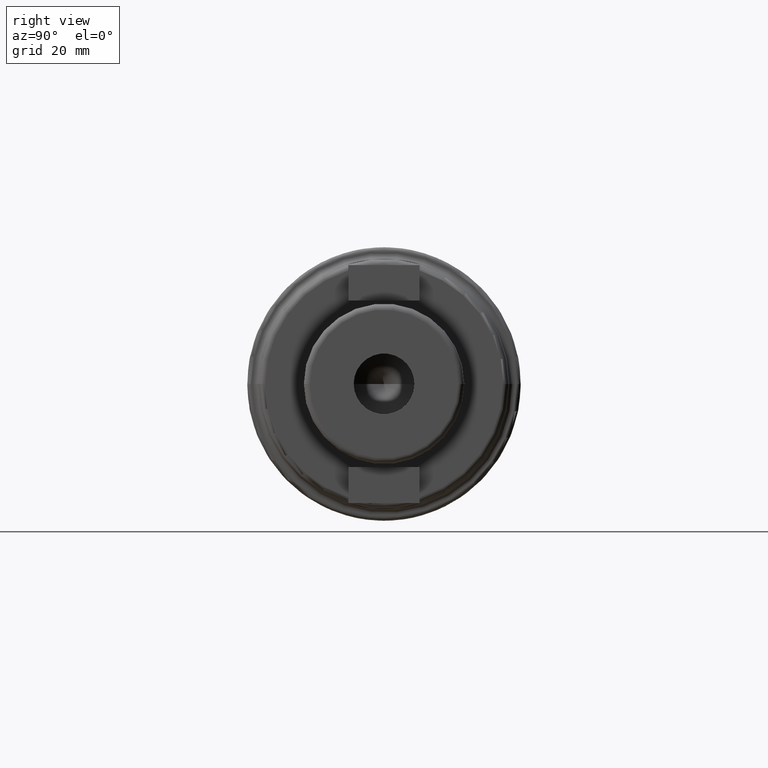
[diagram: clean part render]
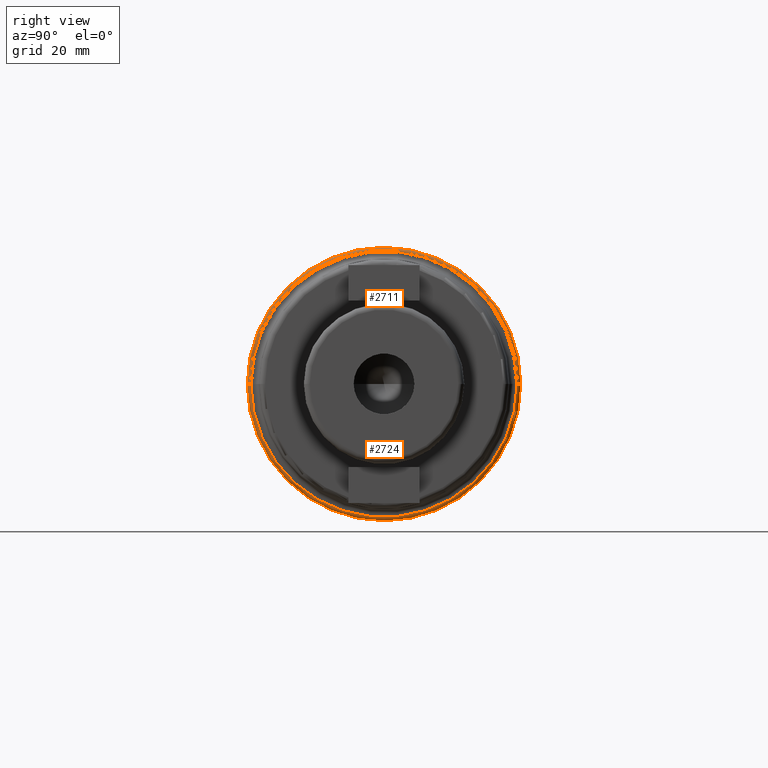
[diagram: same view with one multi-face feature highlighted, each face labeled with its STEP entity id]
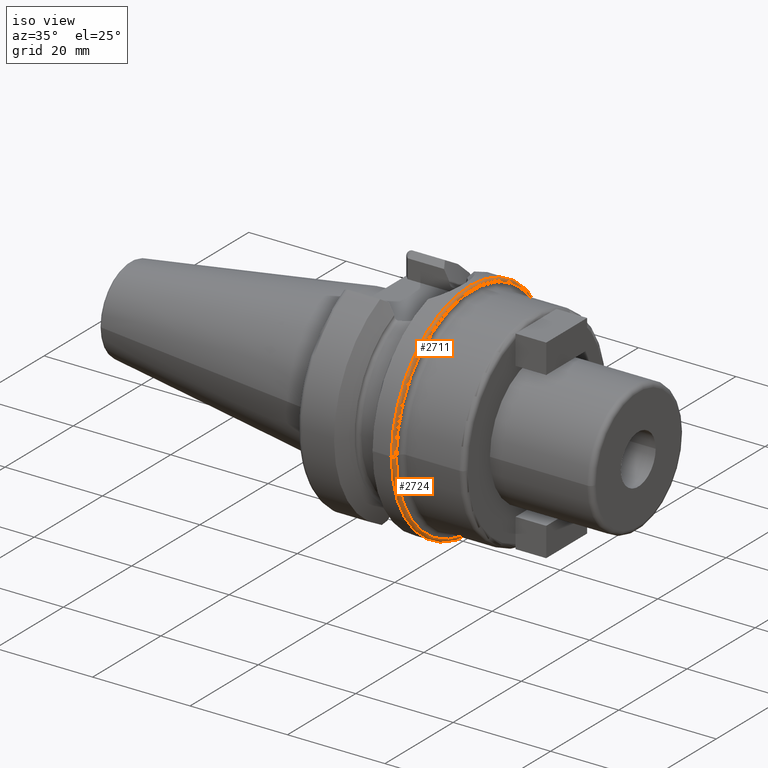
[diagram: same view with one multi-face feature highlighted, each face labeled with its STEP entity id]
A machine part, right view. The highlighted faces form ONE feature: a constant-radius fillet chain: 2 tangent blend faces with common blend radius 0.6 mm. The faces share edges in the B-rep.
A second angle (iso view) of the same feature is appended — it is thin or edge-on in the first view.
Their STEP definitions:
[1] entity #2711 (Torus):
#778=CARTESIAN_POINT('',(2.14E1,0.E0,0.E0));
#779=DIRECTION('',(1.E0,0.E0,0.E0));
#780=DIRECTION('',(0.E0,1.E0,0.E0));
#781=AXIS2_PLACEMENT_3D('',#778,#779,#780);
#802=CARTESIAN_POINT('',(2.2E1,0.E0,0.E0));
#803=DIRECTION('',(1.E0,0.E0,0.E0));
#804=DIRECTION('',(0.E0,1.E0,0.E0));
#805=AXIS2_PLACEMENT_3D('',#802,#803,#804);
#807=CARTESIAN_POINT('',(2.14E1,2.239E1,0.E0));
#808=DIRECTION('',(0.E0,0.E0,1.E0));
#809=DIRECTION('',(1.E0,0.E0,0.E0));
#810=AXIS2_PLACEMENT_3D('',#807,#808,#809);
#812=CARTESIAN_POINT('',(2.14E1,-2.239E1,0.E0));
#813=DIRECTION('',(0.E0,0.E0,-1.E0));
#814=DIRECTION('',(1.E0,0.E0,0.E0));
#815=AXIS2_PLACEMENT_3D('',#812,#813,#814);
#1408=CARTESIAN_POINT('',(2.14E1,2.299E1,0.E0));
#1409=VERTEX_POINT('',#1408);
#1410=CARTESIAN_POINT('',(2.14E1,-2.299E1,0.E0));
#1411=VERTEX_POINT('',#1410);
#1478=CARTESIAN_POINT('',(2.2E1,2.239E1,0.E0));
#1479=VERTEX_POINT('',#1478);
#1480=CARTESIAN_POINT('',(2.2E1,-2.239E1,0.E0));
#1481=VERTEX_POINT('',#1480);
#2697=CARTESIAN_POINT('',(2.14E1,0.E0,0.E0));
#2698=DIRECTION('',(1.E0,0.E0,0.E0));
#2699=DIRECTION('',(0.E0,-1.E0,0.E0));
#2700=AXIS2_PLACEMENT_3D('',#2697,#2698,#2699);
#2701=TOROIDAL_SURFACE('',#2700,2.239E1,6.E-1);
#2703=ORIENTED_EDGE('',*,*,#2702,.F.);
#2705=ORIENTED_EDGE('',*,*,#2704,.T.);
#2707=ORIENTED_EDGE('',*,*,#2706,.T.);
#2708=ORIENTED_EDGE('',*,*,#2688,.F.);
#2709=EDGE_LOOP('',(#2703,#2705,#2707,#2708));
#2710=FACE_OUTER_BOUND('',#2709,.F.);
#2711=ADVANCED_FACE('',(#2710),#2701,.T.);
#782=CIRCLE('',#781,2.299E1);
#806=CIRCLE('',#805,2.239E1);
#811=CIRCLE('',#810,6.E-1);
#816=CIRCLE('',#815,6.E-1);
#2688=EDGE_CURVE('',#1409,#1411,#782,.T.);
#2702=EDGE_CURVE('',#1479,#1409,#811,.T.);
#2704=EDGE_CURVE('',#1479,#1481,#806,.T.);
#2706=EDGE_CURVE('',#1481,#1411,#816,.T.);
[2] entity #2724 (Torus):
#235=CARTESIAN_POINT('',(2.14E1,0.E0,0.E0));
#236=DIRECTION('',(-1.E0,0.E0,0.E0));
#237=DIRECTION('',(0.E0,1.E0,0.E0));
#238=AXIS2_PLACEMENT_3D('',#235,#236,#237);
#807=CARTESIAN_POINT('',(2.14E1,2.239E1,0.E0));
#808=DIRECTION('',(0.E0,0.E0,1.E0));
#809=DIRECTION('',(1.E0,0.E0,0.E0));
#810=AXIS2_PLACEMENT_3D('',#807,#808,#809);
#812=CARTESIAN_POINT('',(2.14E1,-2.239E1,0.E0));
#813=DIRECTION('',(0.E0,0.E0,-1.E0));
#814=DIRECTION('',(1.E0,0.E0,0.E0));
#815=AXIS2_PLACEMENT_3D('',#812,#813,#814);
#817=CARTESIAN_POINT('',(2.2E1,0.E0,0.E0));
#818=DIRECTION('',(-1.E0,0.E0,0.E0));
#819=DIRECTION('',(0.E0,1.E0,0.E0));
#820=AXIS2_PLACEMENT_3D('',#817,#818,#819);
#1408=CARTESIAN_POINT('',(2.14E1,2.299E1,0.E0));
#1409=VERTEX_POINT('',#1408);
#1410=CARTESIAN_POINT('',(2.14E1,-2.299E1,0.E0));
#1411=VERTEX_POINT('',#1410);
#1478=CARTESIAN_POINT('',(2.2E1,2.239E1,0.E0));
#1479=VERTEX_POINT('',#1478);
#1480=CARTESIAN_POINT('',(2.2E1,-2.239E1,0.E0));
#1481=VERTEX_POINT('',#1480);
#2712=CARTESIAN_POINT('',(2.14E1,0.E0,0.E0));
#2713=DIRECTION('',(1.E0,0.E0,0.E0));
#2714=DIRECTION('',(0.E0,-1.E0,0.E0));
#2715=AXIS2_PLACEMENT_3D('',#2712,#2713,#2714);
#2716=TOROIDAL_SURFACE('',#2715,2.239E1,6.E-1);
#2717=ORIENTED_EDGE('',*,*,#2702,.T.);
#2718=ORIENTED_EDGE('',*,*,#1956,.T.);
#2719=ORIENTED_EDGE('',*,*,#2706,.F.);
#2721=ORIENTED_EDGE('',*,*,#2720,.F.);
#2722=EDGE_LOOP('',(#2717,#2718,#2719,#2721));
#2723=FACE_OUTER_BOUND('',#2722,.F.);
#2724=ADVANCED_FACE('',(#2723),#2716,.T.);
#239=CIRCLE('',#238,2.299E1);
#811=CIRCLE('',#810,6.E-1);
#816=CIRCLE('',#815,6.E-1);
#821=CIRCLE('',#820,2.239E1);
#1956=EDGE_CURVE('',#1409,#1411,#239,.T.);
#2702=EDGE_CURVE('',#1479,#1409,#811,.T.);
#2706=EDGE_CURVE('',#1481,#1411,#816,.T.);
#2720=EDGE_CURVE('',#1479,#1481,#821,.T.);